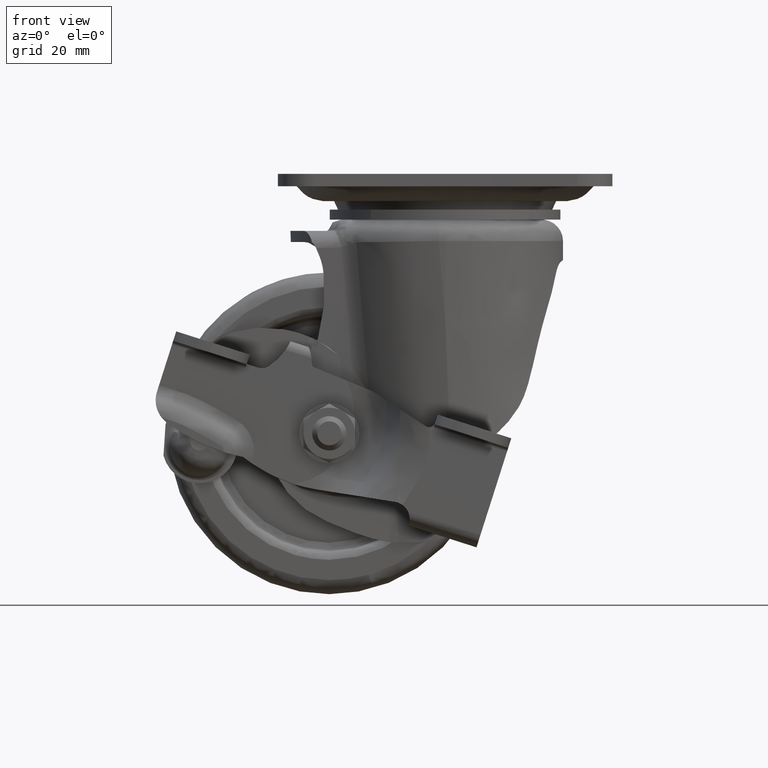
[diagram: clean part render]
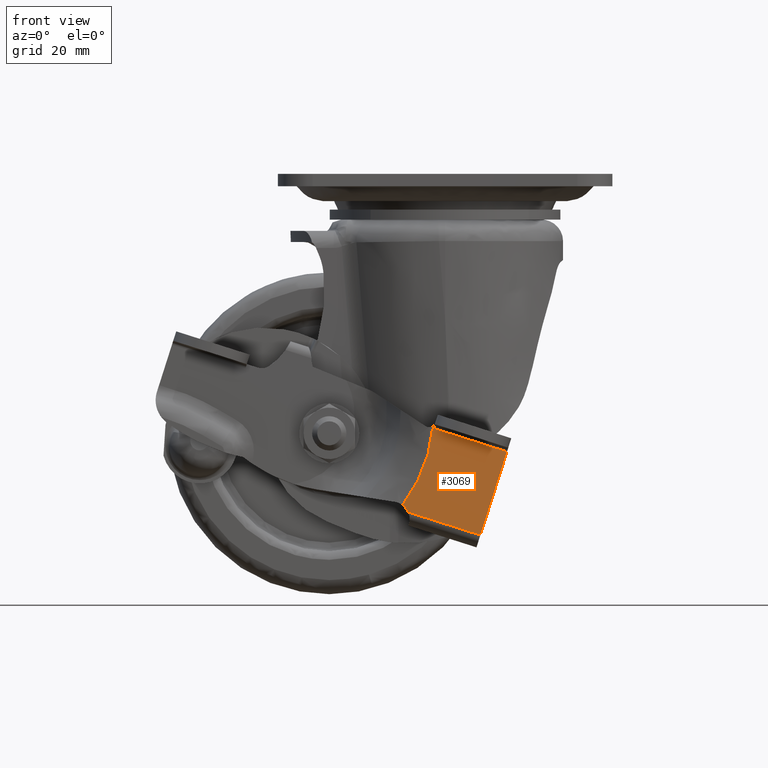
[diagram: same view with one face highlighted and labeled with its STEP entity id]
A machine part, front view. The second image highlights one B-rep face of the part: STEP entity #3069.
In plain terms, the highlighted face is a freeform B-spline surface patch.
Its self-contained STEP definition (entity closure, byte-faithful):
#1986=CARTESIAN_POINT('',(-9.923606918579321,-33.383177999999887,-77.230544139269796));
#1987=VERTEX_POINT('',#1986);
#1997=CARTESIAN_POINT('',(-2.800577347414210,-33.383177999999887,-58.768077845966097));
#1998=VERTEX_POINT('',#1997);
#1999=CARTESIAN_POINT('',(-2.800577347414210,-33.383177999999887,-58.768077845966097));
#2000=CARTESIAN_POINT('',(-3.033332490367203,-33.383178000000008,-61.579466306325287));
#2001=CARTESIAN_POINT('',(-4.032813455513412,-33.383177999999802,-66.423590736144561));
#2002=CARTESIAN_POINT('',(-6.726181638328071,-33.383177999999937,-72.572915306599995));
#2003=CARTESIAN_POINT('',(-8.843590745111410,-33.383177999999923,-75.820484530060611));
#2004=CARTESIAN_POINT('',(-9.923606918579321,-33.383177999999887,-77.230544139269796));
#2005=B_SPLINE_CURVE_WITH_KNOTS('',3,(#1999,#2000,#2001,#2002,#2003,#2004),.UNSPECIFIED.,.F.,.U.,(4,1,1,4),(7.707605E-009,8.462876888563542,14.731645207416530,20.060113026123989),.UNSPECIFIED.);
#2006=EDGE_CURVE('',#1998,#1987,#2005,.T.);
#2229=CARTESIAN_POINT('',(8.229143735516891,-33.383177999999887,-84.225731712835298));
#2230=VERTEX_POINT('',#2229);
#2243=CARTESIAN_POINT('',(-8.620450277168830,-33.383177999999887,-78.848784144309093));
#2244=VERTEX_POINT('',#2243);
#2245=CARTESIAN_POINT('',(-8.620450277168830,-33.383177999999887,-78.848784144309093));
#2246=CARTESIAN_POINT('',(8.229143735516891,-33.383177999999887,-84.225731712835298));
#2247=QUASI_UNIFORM_CURVE('',1,(#2245,#2246),.UNSPECIFIED.,.F.,.U.);
#2248=EDGE_CURVE('',#2244,#2230,#2247,.T.);
#2305=CARTESIAN_POINT('',(14.429251141372900,-33.383177999999887,-64.796621204854503));
#2306=VERTEX_POINT('',#2305);
#2324=CARTESIAN_POINT('',(-2.718785237060695,-33.383177999999887,-59.324437764976700));
#2325=VERTEX_POINT('',#2324);
#2336=CARTESIAN_POINT('',(14.429251141372900,-33.383177999999887,-64.796621204854503));
#2337=CARTESIAN_POINT('',(-2.718785237060695,-33.383177999999887,-59.324437764976700));
#2338=QUASI_UNIFORM_CURVE('',1,(#2336,#2337),.UNSPECIFIED.,.F.,.U.);
#2339=EDGE_CURVE('',#2306,#2325,#2338,.T.);
#3032=CARTESIAN_POINT('',(-11.140032044467850,-33.383177999999887,-56.750415720455941));
#3033=CARTESIAN_POINT('',(15.645675178603851,-33.383177999999887,-56.750415720455941));
#3034=CARTESIAN_POINT('',(-11.140032044467850,-33.383177999999887,-85.532832680849722));
#3035=CARTESIAN_POINT('',(15.645675178603851,-33.383177999999887,-85.532832680849722));
#3036=B_SPLINE_SURFACE_WITH_KNOTS('',1,1,((#3032,#3034),(#3033,#3035)),.UNSPECIFIED.,.F.,.F.,.U.,(2,2),(2,2),(0.0,26.785707223071700),(0.0,28.782416960393778),.UNSPECIFIED.);
#3037=CARTESIAN_POINT('',(-2.314493647192345,-33.383177999999887,-58.057519028090901));
#3038=VERTEX_POINT('',#3037);
#3039=CARTESIAN_POINT('',(-2.800577347414210,-33.383177999999887,-58.768077845966097));
#3040=CARTESIAN_POINT('',(-2.573638690783958,-33.383177999999987,-58.585527023920342));
#3041=CARTESIAN_POINT('',(-2.402568075731374,-33.383177999999873,-58.335061826691962));
#3042=CARTESIAN_POINT('',(-2.314493647192345,-33.383177999999887,-58.057519028090901));
#3043=B_SPLINE_CURVE_WITH_KNOTS('',3,(#3039,#3040,#3041,#3042),.UNSPECIFIED.,.F.,.U.,(4,4),(0.000000057370628,0.873238098548092),.UNSPECIFIED.);
#3044=EDGE_CURVE('',#1998,#3038,#3043,.T.);
#3045=ORIENTED_EDGE('',*,*,#3044,.F.);
#3046=ORIENTED_EDGE('',*,*,#2006,.T.);
#3047=CARTESIAN_POINT('',(-8.620450277168830,-33.383177999999887,-78.848784144309093));
#3048=CARTESIAN_POINT('',(-8.744045943711292,-33.383177999999937,-78.568285651360853));
#3049=CARTESIAN_POINT('',(-9.100778873021694,-33.383177999999887,-77.959912989763851));
#3050=CARTESIAN_POINT('',(-9.605062495170426,-33.383177999999923,-77.462610522090031));
#3051=CARTESIAN_POINT('',(-9.923606918579321,-33.383177999999887,-77.230544139269796));
#3052=B_SPLINE_CURVE_WITH_KNOTS('',3,(#3047,#3048,#3049,#3050,#3051),.UNSPECIFIED.,.F.,.U.,(4,1,4),(0.000000030127133,0.919567068989431,2.101839511379081),.UNSPECIFIED.);
#3053=EDGE_CURVE('',#2244,#1987,#3052,.T.);
#3054=ORIENTED_EDGE('',*,*,#3053,.F.);
#3055=ORIENTED_EDGE('',*,*,#2248,.T.);
#3056=CARTESIAN_POINT('',(8.229143735516891,-33.383177999999887,-84.225731712835298));
#3057=CARTESIAN_POINT('',(14.429251141372900,-33.383177999999887,-64.796621204854503));
#3058=QUASI_UNIFORM_CURVE('',1,(#3056,#3057),.UNSPECIFIED.,.F.,.U.);
#3059=EDGE_CURVE('',#2230,#2306,#3058,.T.);
#3060=ORIENTED_EDGE('',*,*,#3059,.T.);
#3061=ORIENTED_EDGE('',*,*,#2339,.T.);
#3062=CARTESIAN_POINT('',(-2.718785237060695,-33.383177999999887,-59.324437764976700));
#3063=CARTESIAN_POINT('',(-2.314493647192345,-33.383177999999887,-58.057519028090901));
#3064=QUASI_UNIFORM_CURVE('',1,(#3062,#3063),.UNSPECIFIED.,.F.,.U.);
#3065=EDGE_CURVE('',#2325,#3038,#3064,.T.);
#3066=ORIENTED_EDGE('',*,*,#3065,.T.);
#3067=EDGE_LOOP('',(#3045,#3046,#3054,#3055,#3060,#3061,#3066));
#3068=FACE_OUTER_BOUND('',#3067,.T.);
#3069=ADVANCED_FACE('',(#3068),#3036,.F.);